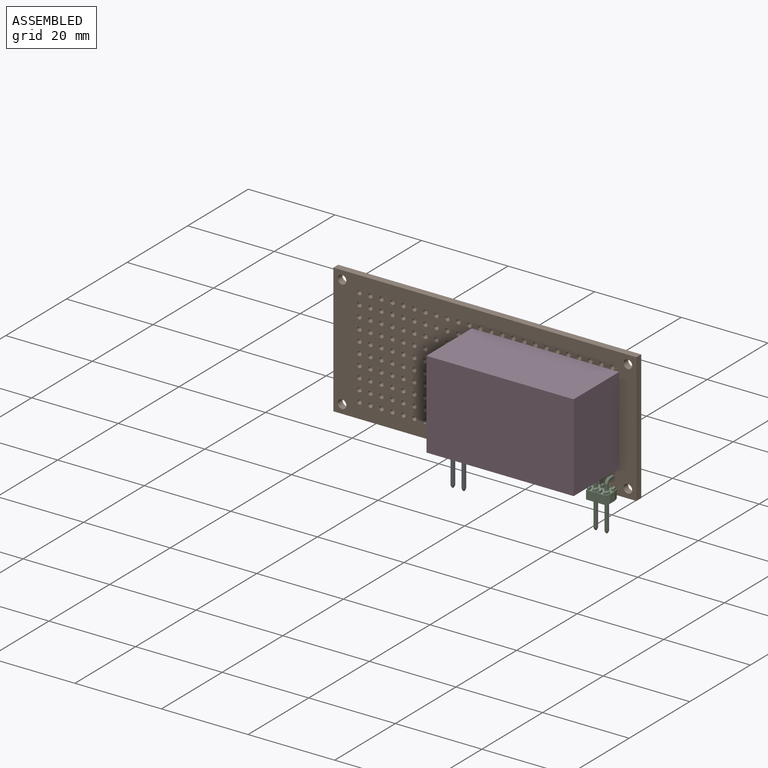
[diagram: assembled view]
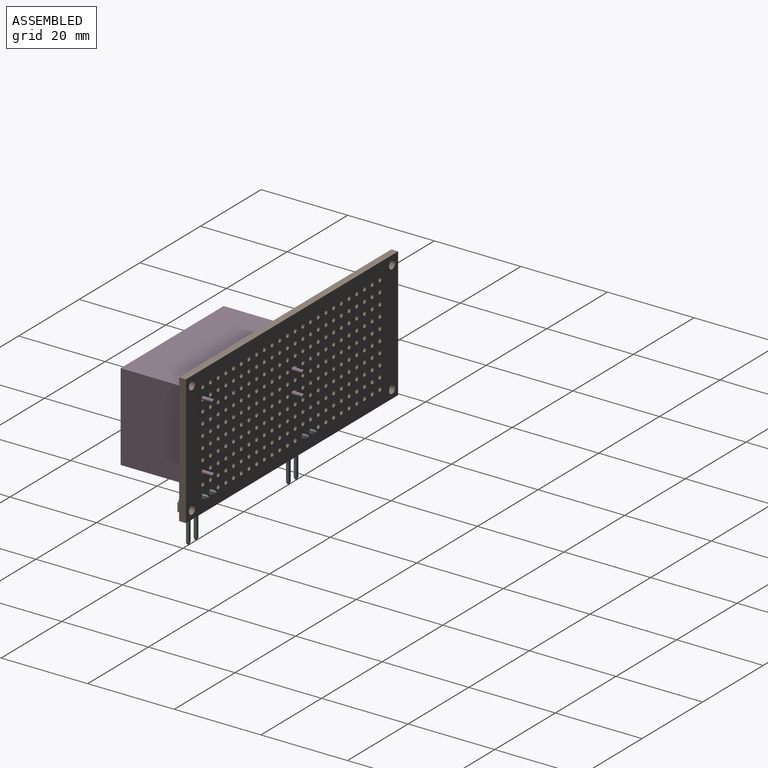
[diagram: assembled view, second angle]
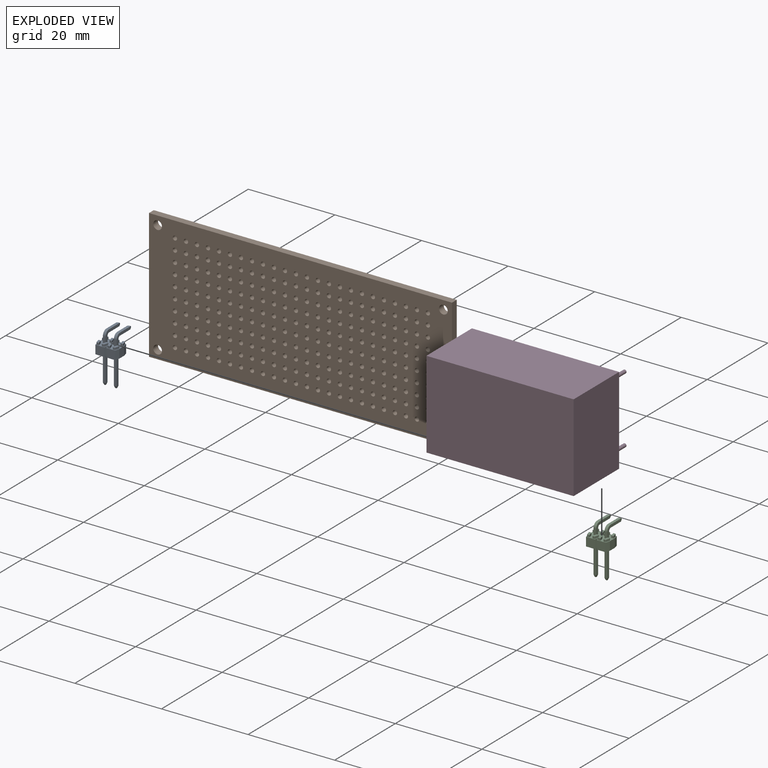
[diagram: exploded view]
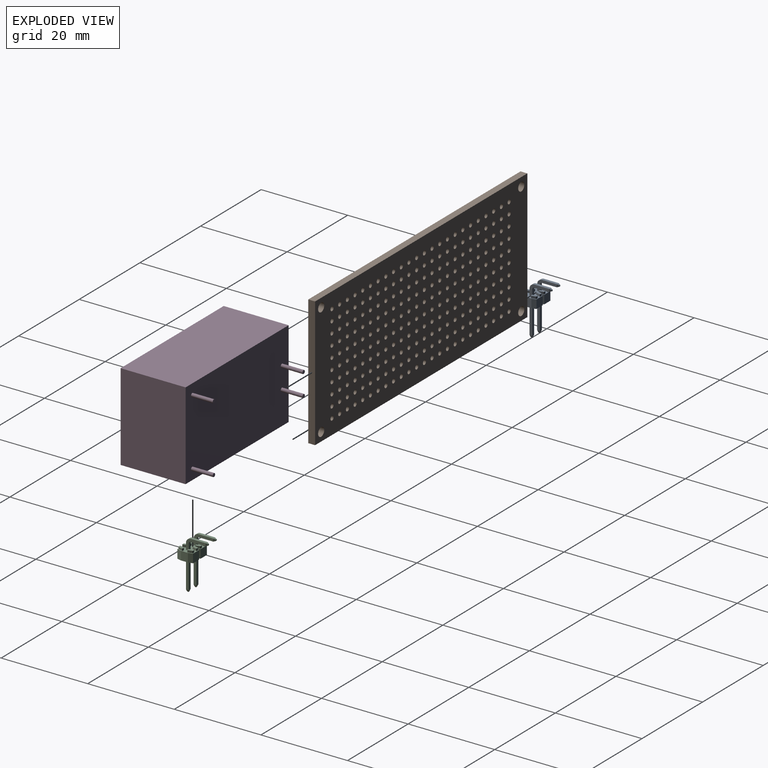
[diagram: exploded view, second angle]
ASSEMBLY  parts=4 mates=5
PART A: 132 faces, bbox 5.1x11.3x6.5 mm
  f0: plane 5.08x3.6mm, normal (0,1,0), area 11.5mm2, adj f1,f2,f3,f4,f5,f6,f7,f10
  f1: plane 2x1mm, normal (-0.97,0,0.24), area 2.1mm2, adj f0,f2,f8,f70
  f2: plane 2.04x2mm, normal (0,0,1), area 4.1mm2, adj f0,f1,f3,f8
  f3: plane 2x1mm, normal (0.97,0,0.24), area 2.1mm2, adj f0,f2,f4,f8
  f4: plane 2x1.6mm, normal (1,0,0), area 3.2mm2, adj f0,f3,f5,f8
  f5: plane 2x1mm, normal (0.97,0,-0.24), area 2.1mm2, adj f0,f4,f6,f8
  f6: plane 2.04x2mm, normal (0,0,-1), area 4.1mm2, adj f0,f5,f7,f8
  f7: plane 2x1mm, normal (-0.97,0,-0.24), area 2.1mm2, adj f0,f6,f8,f71
  f8: plane 5.08x3.6mm, normal (0,-1,0), area 16.5mm2, adj f1,f2,f3,f4,f5,f6,f7,f9
  f9: plane 6.25x0.64mm, normal (-1,0,0), area 4mm2, adj f8,f11,f13,f19
  f10: plane 4.52x2.57mm, normal (-1,0,0), area 3.9mm2, adj f0,f23,f25,f26,f27,f28,f29,f30
  f11: plane 0.64x0.5mm, normal (-0.94,-0.34,0), area 0.2mm2, adj f9,f12,f17,f18
  f12: plane 0.64x0.5mm, normal (0,-0.34,0.94), area 0.2mm2, adj f11,f13,f16,f17
  f13: plane 6.25x0.64mm, normal (0,0,1), area 4mm2, adj f8,f9,f12,f14
  f14: plane 6.25x0.64mm, normal (1,0,0), area 4mm2, adj f8,f13,f16,f19
  f15: plane 4.52x2.57mm, normal (1,0,0), area 3.9mm2, adj f0,f20,f25,f26,f27,f28,f29,f30
  f16: plane 0.64x0.5mm, normal (0.94,-0.34,0), area 0.2mm2, adj f12,f14,f17,f18
  f17: plane 0.27x0.27mm, normal (0,-1,0), area 0.1mm2, adj f11,f12,f16,f18
  f18: plane 0.64x0.5mm, normal (0,-0.34,-0.94), area 0.2mm2, adj f11,f16,f17,f19
  f19: plane 6.25x0.64mm, normal (0,0,-1), area 4mm2, adj f8,f9,f14,f18
  f20: plane 0.64x0.5mm, normal (0.94,0,-0.34), area 0.2mm2, adj f15,f21,f22,f24
  f21: plane 0.64x0.5mm, normal (0,0.94,-0.34), area 0.2mm2, adj f20,f22,f23,f28
  f22: plane 0.27x0.27mm, normal (0,0,-1), area 0.1mm2, adj f20,f21,f23,f24
  f23: plane 0.64x0.5mm, normal (-0.94,0,-0.34), area 0.2mm2, adj f10,f21,f22,f24
  f24: plane 0.64x0.5mm, normal (0,-0.94,-0.34), area 0.2mm2, adj f20,f22,f23,f25
  f25: plane 3.37x0.64mm, normal (0,-1,0), area 2.1mm2, adj f10,f15,f24,f26
  f26: cylinder r=0.51mm len=0.64mm, axis (1,0,0), area 0.5mm2, adj f10,f15,f25,f27
  f27: plane 1.42x0.64mm, normal (0,0,-1), area 0.9mm2, adj f0,f10,f15,f26
  f28: plane 3.37x0.64mm, normal (0,1,0), area 2.1mm2, adj f10,f15,f21,f29
  f29: cylinder r=1.14mm len=1.14mm, axis (1,0,0), area 1.1mm2, adj f10,f15,f28,f30
  f30: plane 1.42x0.64mm, normal (0,0,1), area 0.9mm2, adj f0,f10,f15,f29
  f31: plane 0.94x0.5mm, normal (-0.97,0,-0.26), area 0.5mm2, adj f0,f32,f38,f39
  f32: cylinder r=0.1mm len=0.5mm, axis (0,1,0), area 0.1mm2, adj f0,f31,f33,f39
  f33: plane 0.5x0.35mm, normal (0,0,-1), area 0.2mm2, adj f0,f32,f34,f39
  f34: cylinder r=0.1mm len=0.5mm, axis (0,1,0), area 0.1mm2, adj f0,f33,f35,f39
  f35: plane 0.94x0.5mm, normal (0.97,0,0.26), area 0.5mm2, adj f0,f34,f36,f39
  f36: cylinder r=0.1mm len=0.5mm, axis (0,1,0), area 0.1mm2, adj f0,f35,f37,f39
  f37: plane 0.5x0.35mm, normal (0,0,1), area 0.2mm2, adj f0,f36,f38,f39
  f38: cylinder r=0.1mm len=0.5mm, axis (0,1,0), area 0.1mm2, adj f0,f31,f37,f39
  f39: plane 1.14x0.8mm, normal (0,1,0), area 0.6mm2, adj f31,f32,f33,f34,f35,f36,f37,f38
  f40: plane 1.14x0.8mm, normal (0,1,0), area 0.6mm2, adj f43,f44,f45,f46,f47,f48,f49,f50
  f41: plane 1.14x0.8mm, normal (0,1,0), area 0.6mm2, adj f51,f52,f53,f54,f55,f56,f57,f58
  f42: plane 1.14x0.8mm, normal (0,1,0), area 0.6mm2, adj f59,f60,f61,f62,f63,f64,f65,f66
  f43: cylinder r=0.1mm len=0.5mm, axis (0,1,0), area 0.1mm2, adj f0,f40,f44,f50
  f44: plane 0.94x0.5mm, normal (0.97,0,-0.26), area 0.5mm2, adj f0,f40,f43,f45
  f45: cylinder r=0.1mm len=0.5mm, axis (0,1,0), area 0.1mm2, adj f0,f40,f44,f46
  f46: plane 0.5x0.35mm, normal (0,0,1), area 0.2mm2, adj f0,f40,f45,f47
  f47: cylinder r=0.1mm len=0.5mm, axis (0,1,0), area 0.1mm2, adj f0,f40,f46,f48
  f48: plane 0.94x0.5mm, normal (-0.97,0,0.26), area 0.5mm2, adj f0,f40,f47,f49
  f49: cylinder r=0.1mm len=0.5mm, axis (0,1,0), area 0.1mm2, adj f0,f40,f48,f50
  f50: plane 0.5x0.35mm, normal (0,0,-1), area 0.2mm2, adj f0,f40,f43,f49
  f51: cylinder r=0.1mm len=0.5mm, axis (0,1,0), area 0.1mm2, adj f0,f41,f52,f58
  f52: plane 0.94x0.5mm, normal (-0.97,0,0.26), area 0.5mm2, adj f0,f41,f51,f53
  f53: cylinder r=0.1mm len=0.5mm, axis (0,1,0), area 0.1mm2, adj f0,f41,f52,f54
  f54: plane 0.5x0.35mm, normal (0,0,-1), area 0.2mm2, adj f0,f41,f53,f55
  f55: cylinder r=0.1mm len=0.5mm, axis (0,1,0), area 0.1mm2, adj f0,f41,f54,f56
  f56: plane 0.94x0.5mm, normal (0.97,0,-0.26), area 0.5mm2, adj f0,f41,f55,f57
  f57: cylinder r=0.1mm len=0.5mm, axis (0,1,0), area 0.1mm2, adj f0,f41,f56,f58
  f58: plane 0.5x0.35mm, normal (0,0,1), area 0.2mm2, adj f0,f41,f51,f57
  f59: plane 0.94x0.5mm, normal (0.97,0,0.26), area 0.5mm2, adj f0,f42,f60,f66
  f60: cylinder r=0.1mm len=0.5mm, axis (0,1,0), area 0.1mm2, adj f0,f42,f59,f61
  f61: plane 0.5x0.35mm, normal (0,0,1), area 0.2mm2, adj f0,f42,f60,f62
  f62: cylinder r=0.1mm len=0.5mm, axis (0,1,0), area 0.1mm2, adj f0,f42,f61,f63
  f63: plane 0.94x0.5mm, normal (-0.97,0,-0.26), area 0.5mm2, adj f0,f42,f62,f64
  f64: cylinder r=0.1mm len=0.5mm, axis (0,1,0), area 0.1mm2, adj f0,f42,f63,f65
  f65: plane 0.5x0.35mm, normal (0,0,-1), area 0.2mm2, adj f0,f42,f64,f66
  f66: cylinder r=0.1mm len=0.5mm, axis (0,1,0), area 0.1mm2, adj f0,f42,f59,f65
  f67: plane 2x1.6mm, normal (-1,0,0), area 3.2mm2, adj f0,f8,f68,f73
  f68: plane 2x1mm, normal (-0.97,0,0.24), area 2.1mm2, adj f0,f8,f67,f69
  f69: plane 2.04x2mm, normal (0,0,1), area 4.1mm2, adj f0,f8,f68,f70
  f70: plane 2x1mm, normal (0.97,0,0.24), area 2.1mm2, adj f0,f1,f8,f69
  f71: plane 2x1mm, normal (0.97,0,-0.24), area 2.1mm2, adj f0,f7,f8,f72
  f72: plane 2.04x2mm, normal (0,0,-1), area 4.1mm2, adj f0,f8,f71,f73
  f73: plane 2x1mm, normal (-0.97,0,-0.24), area 2.1mm2, adj f0,f8,f67,f72
  f74: plane 6.25x0.64mm, normal (-1,0,0), area 4mm2, adj f8,f76,f78,f84
  f75: plane 4.52x2.57mm, normal (-1,0,0), area 3.9mm2, adj f0,f88,f90,f91,f92,f93,f94,f95
  f76: plane 0.64x0.5mm, normal (-0.94,-0.34,0), area 0.2mm2, adj f74,f77,f82,f83
  f77: plane 0.64x0.5mm, normal (0,-0.34,0.94), area 0.2mm2, adj f76,f78,f81,f82
  f78: plane 6.25x0.64mm, normal (0,0,1), area 4mm2, adj f8,f74,f77,f79
  f79: plane 6.25x0.64mm, normal (1,0,0), area 4mm2, adj f8,f78,f81,f84
  f80: plane 4.52x2.57mm, normal (1,0,0), area 3.9mm2, adj f0,f85,f90,f91,f92,f93,f94,f95
  f81: plane 0.64x0.5mm, normal (0.94,-0.34,0), area 0.2mm2, adj f77,f79,f82,f83
  f82: plane 0.27x0.27mm, normal (0,-1,0), area 0.1mm2, adj f76,f77,f81,f83
  f83: plane 0.64x0.5mm, normal (0,-0.34,-0.94), area 0.2mm2, adj f76,f81,f82,f84
  f84: plane 6.25x0.64mm, normal (0,0,-1), area 4mm2, adj f8,f74,f79,f83
  f85: plane 0.64x0.5mm, normal (0.94,0,-0.34), area 0.2mm2, adj f80,f86,f87,f89
  f86: plane 0.64x0.5mm, normal (0,0.94,-0.34), area 0.2mm2, adj f85,f87,f88,f93
  f87: plane 0.27x0.27mm, normal (0,0,-1), area 0.1mm2, adj f85,f86,f88,f89
  f88: plane 0.64x0.5mm, normal (-0.94,0,-0.34), area 0.2mm2, adj f75,f86,f87,f89
  f89: plane 0.64x0.5mm, normal (0,-0.94,-0.34), area 0.2mm2, adj f85,f87,f88,f90
  f90: plane 3.37x0.64mm, normal (0,-1,0), area 2.1mm2, adj f75,f80,f89,f91
  f91: cylinder r=0.51mm len=0.64mm, axis (1,0,0), area 0.5mm2, adj f75,f80,f90,f92
  f92: plane 1.42x0.64mm, normal (0,0,-1), area 0.9mm2, adj f0,f75,f80,f91
  f93: plane 3.37x0.64mm, normal (0,1,0), area 2.1mm2, adj f75,f80,f86,f94
  f94: cylinder r=1.14mm len=1.14mm, axis (1,0,0), area 1.1mm2, adj f75,f80,f93,f95
  f95: plane 1.42x0.64mm, normal (0,0,1), area 0.9mm2, adj f0,f75,f80,f94
  f96: plane 0.94x0.5mm, normal (-0.97,0,-0.26), area 0.5mm2, adj f0,f97,f103,f104
  f97: cylinder r=0.1mm len=0.5mm, axis (0,1,0), area 0.1mm2, adj f0,f96,f98,f104
  f98: plane 0.5x0.35mm, normal (0,0,-1), area 0.2mm2, adj f0,f97,f99,f104
  f99: cylinder r=0.1mm len=0.5mm, axis (0,1,0), area 0.1mm2, adj f0,f98,f100,f104
  f100: plane 0.94x0.5mm, normal (0.97,0,0.26), area 0.5mm2, adj f0,f99,f101,f104
  f101: cylinder r=0.1mm len=0.5mm, axis (0,1,0), area 0.1mm2, adj f0,f100,f102,f104
  f102: plane 0.5x0.35mm, normal (0,0,1), area 0.2mm2, adj f0,f101,f103,f104
  f103: cylinder r=0.1mm len=0.5mm, axis (0,1,0), area 0.1mm2, adj f0,f96,f102,f104
  f104: plane 1.14x0.8mm, normal (0,1,0), area 0.6mm2, adj f96,f97,f98,f99,f100,f101,f102,f103
  f105: plane 1.14x0.8mm, normal (0,1,0), area 0.6mm2, adj f108,f109,f110,f111,f112,f113,f114,f115
  f106: plane 1.14x0.8mm, normal (0,1,0), area 0.6mm2, adj f116,f117,f118,f119,f120,f121,f122,f123
  f107: plane 1.14x0.8mm, normal (0,1,0), area 0.6mm2, adj f124,f125,f126,f127,f128,f129,f130,f131
  f108: cylinder r=0.1mm len=0.5mm, axis (0,1,0), area 0.1mm2, adj f0,f105,f109,f115
  f109: plane 0.94x0.5mm, normal (0.97,0,-0.26), area 0.5mm2, adj f0,f105,f108,f110
  f110: cylinder r=0.1mm len=0.5mm, axis (0,1,0), area 0.1mm2, adj f0,f105,f109,f111
  f111: plane 0.5x0.35mm, normal (0,0,1), area 0.2mm2, adj f0,f105,f110,f112
  f112: cylinder r=0.1mm len=0.5mm, axis (0,1,0), area 0.1mm2, adj f0,f105,f111,f113
  f113: plane 0.94x0.5mm, normal (-0.97,0,0.26), area 0.5mm2, adj f0,f105,f112,f114
  f114: cylinder r=0.1mm len=0.5mm, axis (0,1,0), area 0.1mm2, adj f0,f105,f113,f115
  f115: plane 0.5x0.35mm, normal (0,0,-1), area 0.2mm2, adj f0,f105,f108,f114
  f116: cylinder r=0.1mm len=0.5mm, axis (0,1,0), area 0.1mm2, adj f0,f106,f117,f123
  f117: plane 0.94x0.5mm, normal (-0.97,0,0.26), area 0.5mm2, adj f0,f106,f116,f118
  f118: cylinder r=0.1mm len=0.5mm, axis (0,1,0), area 0.1mm2, adj f0,f106,f117,f119
  f119: plane 0.5x0.35mm, normal (0,0,-1), area 0.2mm2, adj f0,f106,f118,f120
  f120: cylinder r=0.1mm len=0.5mm, axis (0,1,0), area 0.1mm2, adj f0,f106,f119,f121
  f121: plane 0.94x0.5mm, normal (0.97,0,-0.26), area 0.5mm2, adj f0,f106,f120,f122
  f122: cylinder r=0.1mm len=0.5mm, axis (0,1,0), area 0.1mm2, adj f0,f106,f121,f123
  f123: plane 0.5x0.35mm, normal (0,0,1), area 0.2mm2, adj f0,f106,f116,f122
  f124: plane 0.94x0.5mm, normal (0.97,0,0.26), area 0.5mm2, adj f0,f107,f125,f131
  f125: cylinder r=0.1mm len=0.5mm, axis (0,1,0), area 0.1mm2, adj f0,f107,f124,f126
  f126: plane 0.5x0.35mm, normal (0,0,1), area 0.2mm2, adj f0,f107,f125,f127
  f127: cylinder r=0.1mm len=0.5mm, axis (0,1,0), area 0.1mm2, adj f0,f107,f126,f128
  f128: plane 0.94x0.5mm, normal (-0.97,0,-0.26), area 0.5mm2, adj f0,f107,f127,f129
  f129: cylinder r=0.1mm len=0.5mm, axis (0,1,0), area 0.1mm2, adj f0,f107,f128,f130
  f130: plane 0.5x0.35mm, normal (0,0,-1), area 0.2mm2, adj f0,f107,f129,f131
  f131: cylinder r=0.1mm len=0.5mm, axis (0,1,0), area 0.1mm2, adj f0,f107,f124,f130
PART B: 250 faces, bbox 30x1.6x70 mm
  f0: plane 30x1.57mm, normal (0,0,-1), area 47.2mm2, adj f1,f3,f4,f5
  f1: plane 70x1.57mm, normal (1,0,0), area 110.2mm2, adj f0,f2,f4,f5
  f2: plane 30x1.57mm, normal (0,0,1), area 47.2mm2, adj f1,f3,f4,f5
  f3: plane 70x1.57mm, normal (-1,0,0), area 110.2mm2, adj f0,f2,f4,f5
  f4: plane 70x30mm, normal (0,-1,0), area 1898.9mm2, adj f0,f1,f2,f3,f6,f7,f8,f9
  f5: plane 70x30mm, normal (0,1,0), area 1898.9mm2, adj f0,f1,f2,f3,f6,f7,f8,f9
  f6: cylinder r=1mm len=2mm, axis (0,1,0), area 9.9mm2, adj f4,f5
  f7: cylinder r=1mm len=2mm, axis (0,1,0), area 9.9mm2, adj f4,f5
  f8: cylinder r=1mm len=2mm, axis (0,1,0), area 9.9mm2, adj f4,f5
  f9: cylinder r=1mm len=2mm, axis (0,1,0), area 9.9mm2, adj f4,f5
  f10: cylinder r=0.5mm len=1.57mm, axis (0,-1,0), area 4.9mm2, adj f4,f5
  f11: cylinder r=0.5mm len=1.57mm, axis (0,-1,0), area 4.9mm2, adj f4,f5
  f12: cylinder r=0.5mm len=1.57mm, axis (0,-1,0), area 4.9mm2, adj f4,f5
  f13: cylinder r=0.5mm len=1.57mm, axis (0,-1,0), area 4.9mm2, adj f4,f5
  f14: cylinder r=0.5mm len=1.57mm, axis (0,-1,0), area 4.9mm2, adj f4,f5
  f15: cylinder r=0.5mm len=1.57mm, axis (0,-1,0), area 4.9mm2, adj f4,f5
  f16: cylinder r=0.5mm len=1.57mm, axis (0,-1,0), area 4.9mm2, adj f4,f5
  f17: cylinder r=0.5mm len=1.57mm, axis (0,-1,0), area 4.9mm2, adj f4,f5
  f18: cylinder r=0.5mm len=1.57mm, axis (0,-1,0), area 4.9mm2, adj f4,f5
  f19: cylinder r=0.5mm len=1.57mm, axis (0,-1,0), area 4.9mm2, adj f4,f5
  f20: cylinder r=0.5mm len=1.57mm, axis (0,-1,0), area 4.9mm2, adj f4,f5
  f21: cylinder r=0.5mm len=1.57mm, axis (0,-1,0), area 4.9mm2, adj f4,f5
  f22: cylinder r=0.5mm len=1.57mm, axis (0,-1,0), area 4.9mm2, adj f4,f5
  f23: cylinder r=0.5mm len=1.57mm, axis (0,-1,0), area 4.9mm2, adj f4,f5
  f24: cylinder r=0.5mm len=1.57mm, axis (0,-1,0), area 4.9mm2, adj f4,f5
  f25: cylinder r=0.5mm len=1.57mm, axis (0,-1,0), area 4.9mm2, adj f4,f5
  f26: cylinder r=0.5mm len=1.57mm, axis (0,-1,0), area 4.9mm2, adj f4,f5
  f27: cylinder r=0.5mm len=1.57mm, axis (0,-1,0), area 4.9mm2, adj f4,f5
  f28: cylinder r=0.5mm len=1.57mm, axis (0,-1,0), area 4.9mm2, adj f4,f5
  f29: cylinder r=0.5mm len=1.57mm, axis (0,-1,0), area 4.9mm2, adj f4,f5
  f30: cylinder r=0.5mm len=1.57mm, axis (0,-1,0), area 4.9mm2, adj f4,f5
  f31: cylinder r=0.5mm len=1.57mm, axis (0,-1,0), area 4.9mm2, adj f4,f5
  f32: cylinder r=0.5mm len=1.57mm, axis (0,-1,0), area 4.9mm2, adj f4,f5
  f33: cylinder r=0.5mm len=1.57mm, axis (0,-1,0), area 4.9mm2, adj f4,f5
  f34: cylinder r=0.5mm len=1.57mm, axis (0,-1,0), area 4.9mm2, adj f4,f5
  f35: cylinder r=0.5mm len=1.57mm, axis (0,-1,0), area 4.9mm2, adj f4,f5
  f36: cylinder r=0.5mm len=1.57mm, axis (0,-1,0), area 4.9mm2, adj f4,f5
  f37: cylinder r=0.5mm len=1.57mm, axis (0,-1,0), area 4.9mm2, adj f4,f5
  f38: cylinder r=0.5mm len=1.57mm, axis (0,-1,0), area 4.9mm2, adj f4,f5
  f39: cylinder r=0.5mm len=1.57mm, axis (0,-1,0), area 4.9mm2, adj f4,f5
  f40: cylinder r=0.5mm len=1.57mm, axis (0,-1,0), area 4.9mm2, adj f4,f5
  f41: cylinder r=0.5mm len=1.57mm, axis (0,-1,0), area 4.9mm2, adj f4,f5
  f42: cylinder r=0.5mm len=1.57mm, axis (0,-1,0), area 4.9mm2, adj f4,f5
  f43: cylinder r=0.5mm len=1.57mm, axis (0,-1,0), area 4.9mm2, adj f4,f5
  f44: cylinder r=0.5mm len=1.57mm, axis (0,-1,0), area 4.9mm2, adj f4,f5
  f45: cylinder r=0.5mm len=1.57mm, axis (0,-1,0), area 4.9mm2, adj f4,f5
  f46: cylinder r=0.5mm len=1.57mm, axis (0,-1,0), area 4.9mm2, adj f4,f5
  f47: cylinder r=0.5mm len=1.57mm, axis (0,-1,0), area 4.9mm2, adj f4,f5
  f48: cylinder r=0.5mm len=1.57mm, axis (0,-1,0), area 4.9mm2, adj f4,f5
  f49: cylinder r=0.5mm len=1.57mm, axis (0,-1,0), area 4.9mm2, adj f4,f5
  f50: cylinder r=0.5mm len=1.57mm, axis (0,-1,0), area 4.9mm2, adj f4,f5
  f51: cylinder r=0.5mm len=1.57mm, axis (0,-1,0), area 4.9mm2, adj f4,f5
  f52: cylinder r=0.5mm len=1.57mm, axis (0,-1,0), area 4.9mm2, adj f4,f5
  f53: cylinder r=0.5mm len=1.57mm, axis (0,-1,0), area 4.9mm2, adj f4,f5
  f54: cylinder r=0.5mm len=1.57mm, axis (0,-1,0), area 4.9mm2, adj f4,f5
  f55: cylinder r=0.5mm len=1.57mm, axis (0,-1,0), area 4.9mm2, adj f4,f5
  f56: cylinder r=0.5mm len=1.57mm, axis (0,-1,0), area 4.9mm2, adj f4,f5
  f57: cylinder r=0.5mm len=1.57mm, axis (0,-1,0), area 4.9mm2, adj f4,f5
  f58: cylinder r=0.5mm len=1.57mm, axis (0,-1,0), area 4.9mm2, adj f4,f5
  f59: cylinder r=0.5mm len=1.57mm, axis (0,-1,0), area 4.9mm2, adj f4,f5
  f60: cylinder r=0.5mm len=1.57mm, axis (0,-1,0), area 4.9mm2, adj f4,f5
  f61: cylinder r=0.5mm len=1.57mm, axis (0,-1,0), area 4.9mm2, adj f4,f5
  f62: cylinder r=0.5mm len=1.57mm, axis (0,-1,0), area 4.9mm2, adj f4,f5
  f63: cylinder r=0.5mm len=1.57mm, axis (0,-1,0), area 4.9mm2, adj f4,f5
  f64: cylinder r=0.5mm len=1.57mm, axis (0,-1,0), area 4.9mm2, adj f4,f5
  f65: cylinder r=0.5mm len=1.57mm, axis (0,-1,0), area 4.9mm2, adj f4,f5
  f66: cylinder r=0.5mm len=1.57mm, axis (0,-1,0), area 4.9mm2, adj f4,f5
  f67: cylinder r=0.5mm len=1.57mm, axis (0,-1,0), area 4.9mm2, adj f4,f5
  f68: cylinder r=0.5mm len=1.57mm, axis (0,-1,0), area 4.9mm2, adj f4,f5
  f69: cylinder r=0.5mm len=1.57mm, axis (0,-1,0), area 4.9mm2, adj f4,f5
  f70: cylinder r=0.5mm len=1.57mm, axis (0,-1,0), area 4.9mm2, adj f4,f5
  f71: cylinder r=0.5mm len=1.57mm, axis (0,-1,0), area 4.9mm2, adj f4,f5
  f72: cylinder r=0.5mm len=1.57mm, axis (0,-1,0), area 4.9mm2, adj f4,f5
  f73: cylinder r=0.5mm len=1.57mm, axis (0,-1,0), area 4.9mm2, adj f4,f5
  f74: cylinder r=0.5mm len=1.57mm, axis (0,-1,0), area 4.9mm2, adj f4,f5
  f75: cylinder r=0.5mm len=1.57mm, axis (0,-1,0), area 4.9mm2, adj f4,f5
  f76: cylinder r=0.5mm len=1.57mm, axis (0,-1,0), area 4.9mm2, adj f4,f5
  f77: cylinder r=0.5mm len=1.57mm, axis (0,-1,0), area 4.9mm2, adj f4,f5
  f78: cylinder r=0.5mm len=1.57mm, axis (0,-1,0), area 4.9mm2, adj f4,f5
  f79: cylinder r=0.5mm len=1.57mm, axis (0,-1,0), area 4.9mm2, adj f4,f5
  f80: cylinder r=0.5mm len=1.57mm, axis (0,-1,0), area 4.9mm2, adj f4,f5
  f81: cylinder r=0.5mm len=1.57mm, axis (0,-1,0), area 4.9mm2, adj f4,f5
  f82: cylinder r=0.5mm len=1.57mm, axis (0,-1,0), area 4.9mm2, adj f4,f5
  f83: cylinder r=0.5mm len=1.57mm, axis (0,-1,0), area 4.9mm2, adj f4,f5
  f84: cylinder r=0.5mm len=1.57mm, axis (0,-1,0), area 4.9mm2, adj f4,f5
  f85: cylinder r=0.5mm len=1.57mm, axis (0,-1,0), area 4.9mm2, adj f4,f5
  f86: cylinder r=0.5mm len=1.57mm, axis (0,-1,0), area 4.9mm2, adj f4,f5
  f87: cylinder r=0.5mm len=1.57mm, axis (0,-1,0), area 4.9mm2, adj f4,f5
  f88: cylinder r=0.5mm len=1.57mm, axis (0,-1,0), area 4.9mm2, adj f4,f5
  f89: cylinder r=0.5mm len=1.57mm, axis (0,-1,0), area 4.9mm2, adj f4,f5
  f90: cylinder r=0.5mm len=1.57mm, axis (0,-1,0), area 4.9mm2, adj f4,f5
  f91: cylinder r=0.5mm len=1.57mm, axis (0,-1,0), area 4.9mm2, adj f4,f5
  f92: cylinder r=0.5mm len=1.57mm, axis (0,-1,0), area 4.9mm2, adj f4,f5
  f93: cylinder r=0.5mm len=1.57mm, axis (0,-1,0), area 4.9mm2, adj f4,f5
  f94: cylinder r=0.5mm len=1.57mm, axis (0,-1,0), area 4.9mm2, adj f4,f5
  f95: cylinder r=0.5mm len=1.57mm, axis (0,-1,0), area 4.9mm2, adj f4,f5
  f96: cylinder r=0.5mm len=1.57mm, axis (0,-1,0), area 4.9mm2, adj f4,f5
  f97: cylinder r=0.5mm len=1.57mm, axis (0,-1,0), area 4.9mm2, adj f4,f5
  f98: cylinder r=0.5mm len=1.57mm, axis (0,-1,0), area 4.9mm2, adj f4,f5
  f99: cylinder r=0.5mm len=1.57mm, axis (0,-1,0), area 4.9mm2, adj f4,f5
  f100: cylinder r=0.5mm len=1.57mm, axis (0,-1,0), area 4.9mm2, adj f4,f5
  f101: cylinder r=0.5mm len=1.57mm, axis (0,-1,0), area 4.9mm2, adj f4,f5
  f102: cylinder r=0.5mm len=1.57mm, axis (0,-1,0), area 4.9mm2, adj f4,f5
  f103: cylinder r=0.5mm len=1.57mm, axis (0,-1,0), area 4.9mm2, adj f4,f5
  f104: cylinder r=0.5mm len=1.57mm, axis (0,-1,0), area 4.9mm2, adj f4,f5
  f105: cylinder r=0.5mm len=1.57mm, axis (0,-1,0), area 4.9mm2, adj f4,f5
  f106: cylinder r=0.5mm len=1.57mm, axis (0,-1,0), area 4.9mm2, adj f4,f5
  f107: cylinder r=0.5mm len=1.57mm, axis (0,-1,0), area 4.9mm2, adj f4,f5
  f108: cylinder r=0.5mm len=1.57mm, axis (0,-1,0), area 4.9mm2, adj f4,f5
  f109: cylinder r=0.5mm len=1.57mm, axis (0,-1,0), area 4.9mm2, adj f4,f5
  f110: cylinder r=0.5mm len=1.57mm, axis (0,-1,0), area 4.9mm2, adj f4,f5
  f111: cylinder r=0.5mm len=1.57mm, axis (0,-1,0), area 4.9mm2, adj f4,f5
  f112: cylinder r=0.5mm len=1.57mm, axis (0,-1,0), area 4.9mm2, adj f4,f5
  f113: cylinder r=0.5mm len=1.57mm, axis (0,-1,0), area 4.9mm2, adj f4,f5
  f114: cylinder r=0.5mm len=1.57mm, axis (0,-1,0), area 4.9mm2, adj f4,f5
  f115: cylinder r=0.5mm len=1.57mm, axis (0,-1,0), area 4.9mm2, adj f4,f5
  f116: cylinder r=0.5mm len=1.57mm, axis (0,-1,0), area 4.9mm2, adj f4,f5
  f117: cylinder r=0.5mm len=1.57mm, axis (0,-1,0), area 4.9mm2, adj f4,f5
  f118: cylinder r=0.5mm len=1.57mm, axis (0,-1,0), area 4.9mm2, adj f4,f5
  f119: cylinder r=0.5mm len=1.57mm, axis (0,-1,0), area 4.9mm2, adj f4,f5
  f120: cylinder r=0.5mm len=1.57mm, axis (0,-1,0), area 4.9mm2, adj f4,f5
  f121: cylinder r=0.5mm len=1.57mm, axis (0,-1,0), area 4.9mm2, adj f4,f5
  f122: cylinder r=0.5mm len=1.57mm, axis (0,-1,0), area 4.9mm2, adj f4,f5
  f123: cylinder r=0.5mm len=1.57mm, axis (0,-1,0), area 4.9mm2, adj f4,f5
  f124: cylinder r=0.5mm len=1.57mm, axis (0,-1,0), area 4.9mm2, adj f4,f5
  f125: cylinder r=0.5mm len=1.57mm, axis (0,-1,0), area 4.9mm2, adj f4,f5
  f126: cylinder r=0.5mm len=1.57mm, axis (0,-1,0), area 4.9mm2, adj f4,f5
  f127: cylinder r=0.5mm len=1.57mm, axis (0,-1,0), area 4.9mm2, adj f4,f5
  f128: cylinder r=0.5mm len=1.57mm, axis (0,-1,0), area 4.9mm2, adj f4,f5
  f129: cylinder r=0.5mm len=1.57mm, axis (0,-1,0), area 4.9mm2, adj f4,f5
  f130: cylinder r=0.5mm len=1.57mm, axis (0,-1,0), area 4.9mm2, adj f4,f5
  f131: cylinder r=0.5mm len=1.57mm, axis (0,-1,0), area 4.9mm2, adj f4,f5
  f132: cylinder r=0.5mm len=1.57mm, axis (0,-1,0), area 4.9mm2, adj f4,f5
  f133: cylinder r=0.5mm len=1.57mm, axis (0,-1,0), area 4.9mm2, adj f4,f5
  f134: cylinder r=0.5mm len=1.57mm, axis (0,-1,0), area 4.9mm2, adj f4,f5
  f135: cylinder r=0.5mm len=1.57mm, axis (0,-1,0), area 4.9mm2, adj f4,f5
  f136: cylinder r=0.5mm len=1.57mm, axis (0,-1,0), area 4.9mm2, adj f4,f5
  f137: cylinder r=0.5mm len=1.57mm, axis (0,-1,0), area 4.9mm2, adj f4,f5
  f138: cylinder r=0.5mm len=1.57mm, axis (0,-1,0), area 4.9mm2, adj f4,f5
  f139: cylinder r=0.5mm len=1.57mm, axis (0,-1,0), area 4.9mm2, adj f4,f5
  f140: cylinder r=0.5mm len=1.57mm, axis (0,-1,0), area 4.9mm2, adj f4,f5
  f141: cylinder r=0.5mm len=1.57mm, axis (0,-1,0), area 4.9mm2, adj f4,f5
  f142: cylinder r=0.5mm len=1.57mm, axis (0,-1,0), area 4.9mm2, adj f4,f5
  f143: cylinder r=0.5mm len=1.57mm, axis (0,-1,0), area 4.9mm2, adj f4,f5
  f144: cylinder r=0.5mm len=1.57mm, axis (0,-1,0), area 4.9mm2, adj f4,f5
  f145: cylinder r=0.5mm len=1.57mm, axis (0,-1,0), area 4.9mm2, adj f4,f5
  f146: cylinder r=0.5mm len=1.57mm, axis (0,-1,0), area 4.9mm2, adj f4,f5
  f147: cylinder r=0.5mm len=1.57mm, axis (0,-1,0), area 4.9mm2, adj f4,f5
  f148: cylinder r=0.5mm len=1.57mm, axis (0,-1,0), area 4.9mm2, adj f4,f5
  f149: cylinder r=0.5mm len=1.57mm, axis (0,-1,0), area 4.9mm2, adj f4,f5
  f150: cylinder r=0.5mm len=1.57mm, axis (0,-1,0), area 4.9mm2, adj f4,f5
  f151: cylinder r=0.5mm len=1.57mm, axis (0,-1,0), area 4.9mm2, adj f4,f5
  f152: cylinder r=0.5mm len=1.57mm, axis (0,-1,0), area 4.9mm2, adj f4,f5
  f153: cylinder r=0.5mm len=1.57mm, axis (0,-1,0), area 4.9mm2, adj f4,f5
  f154: cylinder r=0.5mm len=1.57mm, axis (0,-1,0), area 4.9mm2, adj f4,f5
  f155: cylinder r=0.5mm len=1.57mm, axis (0,-1,0), area 4.9mm2, adj f4,f5
  f156: cylinder r=0.5mm len=1.57mm, axis (0,-1,0), area 4.9mm2, adj f4,f5
  f157: cylinder r=0.5mm len=1.57mm, axis (0,-1,0), area 4.9mm2, adj f4,f5
  f158: cylinder r=0.5mm len=1.57mm, axis (0,-1,0), area 4.9mm2, adj f4,f5
  f159: cylinder r=0.5mm len=1.57mm, axis (0,-1,0), area 4.9mm2, adj f4,f5
  f160: cylinder r=0.5mm len=1.57mm, axis (0,-1,0), area 4.9mm2, adj f4,f5
  f161: cylinder r=0.5mm len=1.57mm, axis (0,-1,0), area 4.9mm2, adj f4,f5
  f162: cylinder r=0.5mm len=1.57mm, axis (0,-1,0), area 4.9mm2, adj f4,f5
  f163: cylinder r=0.5mm len=1.57mm, axis (0,-1,0), area 4.9mm2, adj f4,f5
  f164: cylinder r=0.5mm len=1.57mm, axis (0,-1,0), area 4.9mm2, adj f4,f5
  f165: cylinder r=0.5mm len=1.57mm, axis (0,-1,0), area 4.9mm2, adj f4,f5
  f166: cylinder r=0.5mm len=1.57mm, axis (0,-1,0), area 4.9mm2, adj f4,f5
  f167: cylinder r=0.5mm len=1.57mm, axis (0,-1,0), area 4.9mm2, adj f4,f5
  f168: cylinder r=0.5mm len=1.57mm, axis (0,-1,0), area 4.9mm2, adj f4,f5
  f169: cylinder r=0.5mm len=1.57mm, axis (0,-1,0), area 4.9mm2, adj f4,f5
  f170: cylinder r=0.5mm len=1.57mm, axis (0,-1,0), area 4.9mm2, adj f4,f5
  f171: cylinder r=0.5mm len=1.57mm, axis (0,-1,0), area 4.9mm2, adj f4,f5
  f172: cylinder r=0.5mm len=1.57mm, axis (0,-1,0), area 4.9mm2, adj f4,f5
  f173: cylinder r=0.5mm len=1.57mm, axis (0,-1,0), area 4.9mm2, adj f4,f5
  f174: cylinder r=0.5mm len=1.57mm, axis (0,-1,0), area 4.9mm2, adj f4,f5
  f175: cylinder r=0.5mm len=1.57mm, axis (0,-1,0), area 4.9mm2, adj f4,f5
  f176: cylinder r=0.5mm len=1.57mm, axis (0,-1,0), area 4.9mm2, adj f4,f5
  f177: cylinder r=0.5mm len=1.57mm, axis (0,-1,0), area 4.9mm2, adj f4,f5
  f178: cylinder r=0.5mm len=1.57mm, axis (0,-1,0), area 4.9mm2, adj f4,f5
  f179: cylinder r=0.5mm len=1.57mm, axis (0,-1,0), area 4.9mm2, adj f4,f5
  f180: cylinder r=0.5mm len=1.57mm, axis (0,-1,0), area 4.9mm2, adj f4,f5
  f181: cylinder r=0.5mm len=1.57mm, axis (0,-1,0), area 4.9mm2, adj f4,f5
  f182: cylinder r=0.5mm len=1.57mm, axis (0,-1,0), area 4.9mm2, adj f4,f5
  f183: cylinder r=0.5mm len=1.57mm, axis (0,-1,0), area 4.9mm2, adj f4,f5
  f184: cylinder r=0.5mm len=1.57mm, axis (0,-1,0), area 4.9mm2, adj f4,f5
  f185: cylinder r=0.5mm len=1.57mm, axis (0,-1,0), area 4.9mm2, adj f4,f5
  f186: cylinder r=0.5mm len=1.57mm, axis (0,-1,0), area 4.9mm2, adj f4,f5
  f187: cylinder r=0.5mm len=1.57mm, axis (0,-1,0), area 4.9mm2, adj f4,f5
  f188: cylinder r=0.5mm len=1.57mm, axis (0,-1,0), area 4.9mm2, adj f4,f5
  f189: cylinder r=0.5mm len=1.57mm, axis (0,-1,0), area 4.9mm2, adj f4,f5
  f190: cylinder r=0.5mm len=1.57mm, axis (0,-1,0), area 4.9mm2, adj f4,f5
  f191: cylinder r=0.5mm len=1.57mm, axis (0,-1,0), area 4.9mm2, adj f4,f5
  f192: cylinder r=0.5mm len=1.57mm, axis (0,-1,0), area 4.9mm2, adj f4,f5
  f193: cylinder r=0.5mm len=1.57mm, axis (0,-1,0), area 4.9mm2, adj f4,f5
  f194: cylinder r=0.5mm len=1.57mm, axis (0,-1,0), area 4.9mm2, adj f4,f5
  f195: cylinder r=0.5mm len=1.57mm, axis (0,-1,0), area 4.9mm2, adj f4,f5
  f196: cylinder r=0.5mm len=1.57mm, axis (0,-1,0), area 4.9mm2, adj f4,f5
  f197: cylinder r=0.5mm len=1.57mm, axis (0,-1,0), area 4.9mm2, adj f4,f5
  f198: cylinder r=0.5mm len=1.57mm, axis (0,-1,0), area 4.9mm2, adj f4,f5
  f199: cylinder r=0.5mm len=1.57mm, axis (0,-1,0), area 4.9mm2, adj f4,f5
  f200: cylinder r=0.5mm len=1.57mm, axis (0,-1,0), area 4.9mm2, adj f4,f5
  f201: cylinder r=0.5mm len=1.57mm, axis (0,-1,0), area 4.9mm2, adj f4,f5
  f202: cylinder r=0.5mm len=1.57mm, axis (0,-1,0), area 4.9mm2, adj f4,f5
  f203: cylinder r=0.5mm len=1.57mm, axis (0,-1,0), area 4.9mm2, adj f4,f5
  f204: cylinder r=0.5mm len=1.57mm, axis (0,-1,0), area 4.9mm2, adj f4,f5
  f205: cylinder r=0.5mm len=1.57mm, axis (0,-1,0), area 4.9mm2, adj f4,f5
  f206: cylinder r=0.5mm len=1.57mm, axis (0,-1,0), area 4.9mm2, adj f4,f5
  f207: cylinder r=0.5mm len=1.57mm, axis (0,-1,0), area 4.9mm2, adj f4,f5
  f208: cylinder r=0.5mm len=1.57mm, axis (0,-1,0), area 4.9mm2, adj f4,f5
  f209: cylinder r=0.5mm len=1.57mm, axis (0,-1,0), area 4.9mm2, adj f4,f5
  f210: cylinder r=0.5mm len=1.57mm, axis (0,-1,0), area 4.9mm2, adj f4,f5
  f211: cylinder r=0.5mm len=1.57mm, axis (0,-1,0), area 4.9mm2, adj f4,f5
  f212: cylinder r=0.5mm len=1.57mm, axis (0,-1,0), area 4.9mm2, adj f4,f5
  f213: cylinder r=0.5mm len=1.57mm, axis (0,-1,0), area 4.9mm2, adj f4,f5
  f214: cylinder r=0.5mm len=1.57mm, axis (0,-1,0), area 4.9mm2, adj f4,f5
  f215: cylinder r=0.5mm len=1.57mm, axis (0,-1,0), area 4.9mm2, adj f4,f5
  f216: cylinder r=0.5mm len=1.57mm, axis (0,-1,0), area 4.9mm2, adj f4,f5
  f217: cylinder r=0.5mm len=1.57mm, axis (0,-1,0), area 4.9mm2, adj f4,f5
  f218: cylinder r=0.5mm len=1.57mm, axis (0,-1,0), area 4.9mm2, adj f4,f5
  f219: cylinder r=0.5mm len=1.57mm, axis (0,-1,0), area 4.9mm2, adj f4,f5
  f220: cylinder r=0.5mm len=1.57mm, axis (0,-1,0), area 4.9mm2, adj f4,f5
  f221: cylinder r=0.5mm len=1.57mm, axis (0,-1,0), area 4.9mm2, adj f4,f5
  f222: cylinder r=0.5mm len=1.57mm, axis (0,-1,0), area 4.9mm2, adj f4,f5
  f223: cylinder r=0.5mm len=1.57mm, axis (0,-1,0), area 4.9mm2, adj f4,f5
  f224: cylinder r=0.5mm len=1.57mm, axis (0,-1,0), area 4.9mm2, adj f4,f5
  f225: cylinder r=0.5mm len=1.57mm, axis (0,-1,0), area 4.9mm2, adj f4,f5
  f226: cylinder r=0.5mm len=1.57mm, axis (0,-1,0), area 4.9mm2, adj f4,f5
  f227: cylinder r=0.5mm len=1.57mm, axis (0,-1,0), area 4.9mm2, adj f4,f5
  f228: cylinder r=0.5mm len=1.57mm, axis (0,-1,0), area 4.9mm2, adj f4,f5
  f229: cylinder r=0.5mm len=1.57mm, axis (0,-1,0), area 4.9mm2, adj f4,f5
  f230: cylinder r=0.5mm len=1.57mm, axis (0,-1,0), area 4.9mm2, adj f4,f5
  f231: cylinder r=0.5mm len=1.57mm, axis (0,-1,0), area 4.9mm2, adj f4,f5
  f232: cylinder r=0.5mm len=1.57mm, axis (0,-1,0), area 4.9mm2, adj f4,f5
  f233: cylinder r=0.5mm len=1.57mm, axis (0,-1,0), area 4.9mm2, adj f4,f5
  f234: cylinder r=0.5mm len=1.57mm, axis (0,-1,0), area 4.9mm2, adj f4,f5
  f235: cylinder r=0.5mm len=1.57mm, axis (0,-1,0), area 4.9mm2, adj f4,f5
  f236: cylinder r=0.5mm len=1.57mm, axis (0,-1,0), area 4.9mm2, adj f4,f5
  f237: cylinder r=0.5mm len=1.57mm, axis (0,-1,0), area 4.9mm2, adj f4,f5
  f238: cylinder r=0.5mm len=1.57mm, axis (0,-1,0), area 4.9mm2, adj f4,f5
  f239: cylinder r=0.5mm len=1.57mm, axis (0,-1,0), area 4.9mm2, adj f4,f5
  f240: cylinder r=0.5mm len=1.57mm, axis (0,-1,0), area 4.9mm2, adj f4,f5
  f241: cylinder r=0.5mm len=1.57mm, axis (0,-1,0), area 4.9mm2, adj f4,f5
  f242: cylinder r=0.5mm len=1.57mm, axis (0,-1,0), area 4.9mm2, adj f4,f5
  f243: cylinder r=0.5mm len=1.57mm, axis (0,-1,0), area 4.9mm2, adj f4,f5
  f244: cylinder r=0.5mm len=1.57mm, axis (0,-1,0), area 4.9mm2, adj f4,f5
  f245: cylinder r=0.5mm len=1.57mm, axis (0,-1,0), area 4.9mm2, adj f4,f5
  f246: cylinder r=0.5mm len=1.57mm, axis (0,-1,0), area 4.9mm2, adj f4,f5
  f247: cylinder r=0.5mm len=1.57mm, axis (0,-1,0), area 4.9mm2, adj f4,f5
  f248: cylinder r=0.5mm len=1.57mm, axis (0,-1,0), area 4.9mm2, adj f4,f5
  f249: cylinder r=0.5mm len=1.57mm, axis (0,-1,0), area 4.9mm2, adj f4,f5
PART C: same geometry as A
PART D: 14 faces, bbox 34x20.2x20 mm
  f0: plane 34x15mm, normal (0,-1,0), area 510mm2, adj f1,f3,f4,f5
  f1: plane 20.2x15mm, normal (1,0,0), area 303mm2, adj f0,f2,f4,f5
  f2: plane 34x15mm, normal (0,1,0), area 510mm2, adj f1,f3,f4,f5
  f3: plane 20.2x15mm, normal (-1,0,0), area 303mm2, adj f0,f2,f4,f5
  f4: plane 34x20.2mm, normal (0,0,1), area 686.8mm2, adj f0,f1,f2,f3
  f5: plane 34x20.2mm, normal (0,0,-1), area 684.8mm2, adj f0,f1,f2,f3,f6,f8,f10,f12
  f6: cylinder r=0.4mm len=5mm, axis (0,0,1), area 12.6mm2, adj f5,f7
  f7: plane 0.8x0.8mm, normal (0,0,-1), area 0.5mm2, adj f6
  f8: cylinder r=0.4mm len=5mm, axis (0,0,1), area 12.6mm2, adj f5,f9
  f9: plane 0.8x0.8mm, normal (0,0,-1), area 0.5mm2, adj f8
  f10: cylinder r=0.4mm len=5mm, axis (0,0,1), area 12.6mm2, adj f5,f11
  f11: plane 0.8x0.8mm, normal (0,0,-1), area 0.5mm2, adj f10
  f12: cylinder r=0.4mm len=5mm, axis (0,0,1), area 12.6mm2, adj f5,f13
  f13: plane 0.8x0.8mm, normal (0,0,-1), area 0.5mm2, adj f12
PLACE A rot(axis=(1,0,0),90deg) t=(-15.58,-26.57,-4.6)mm
PLACE B rot(axis=(0,-1,0),90deg) t=(-11.98,-23.19,10.15)mm
PLACE C rot(axis=(1,0,0),90deg) t=(17.44,-26.57,-4.6)mm
PLACE D rot(axis=(1,0,0),90deg) t=(2.64,-25.65,11.43)mm
MATE parallel C.f8 <-> B.f3  axis (0,0,-1) through (16.17,-26.57,-5.6)mm
MATE cylindrical C.f22 <-> B.f240  axis (0,1,0) through (17.44,-21.87,-1.35)mm
MATE parallel B.f240 <-> C.f6  axis (0,-1,0) through (17.44,-24.77,-1.35)mm
MATE fastened D.f8 <-> B.f242  axis (0,1,0) through (17.44,-20.65,3.73)mm
MATE parallel D.f2 <-> B.f1  axis (0,0,1) through (2.64,-33.15,21.53)mm
